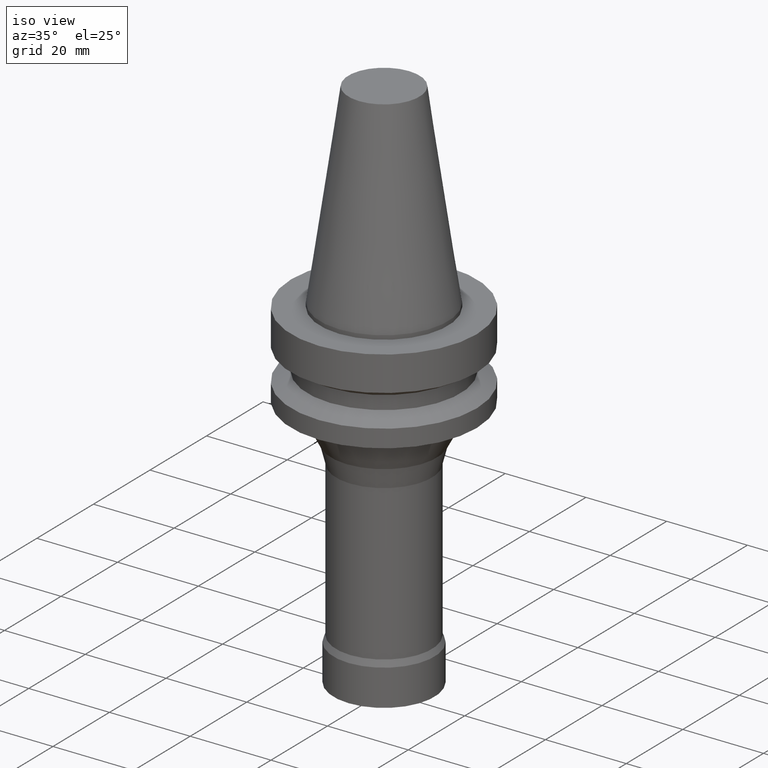
[diagram: clean part render]
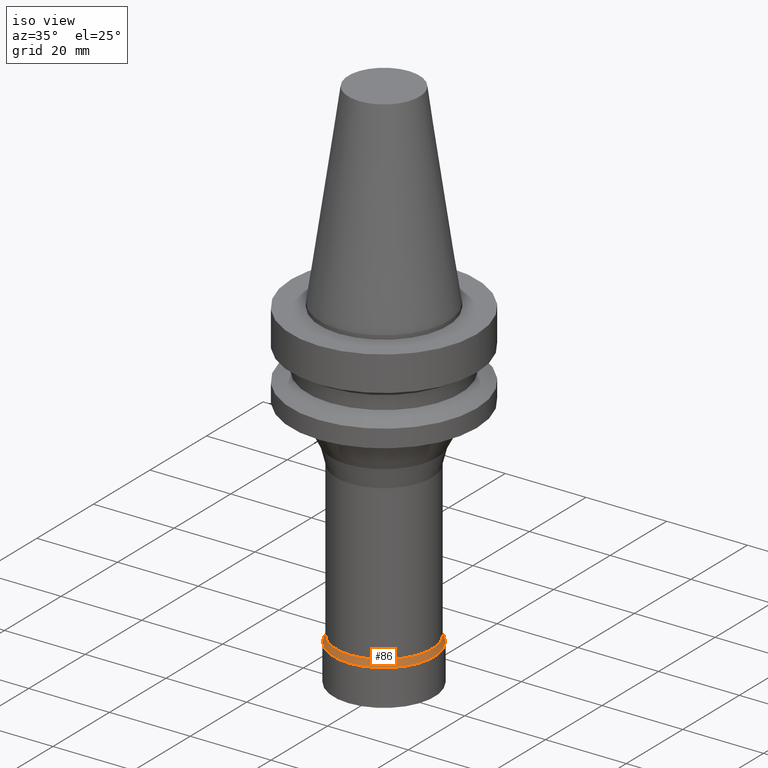
[diagram: same view with one face highlighted and labeled with its STEP entity id]
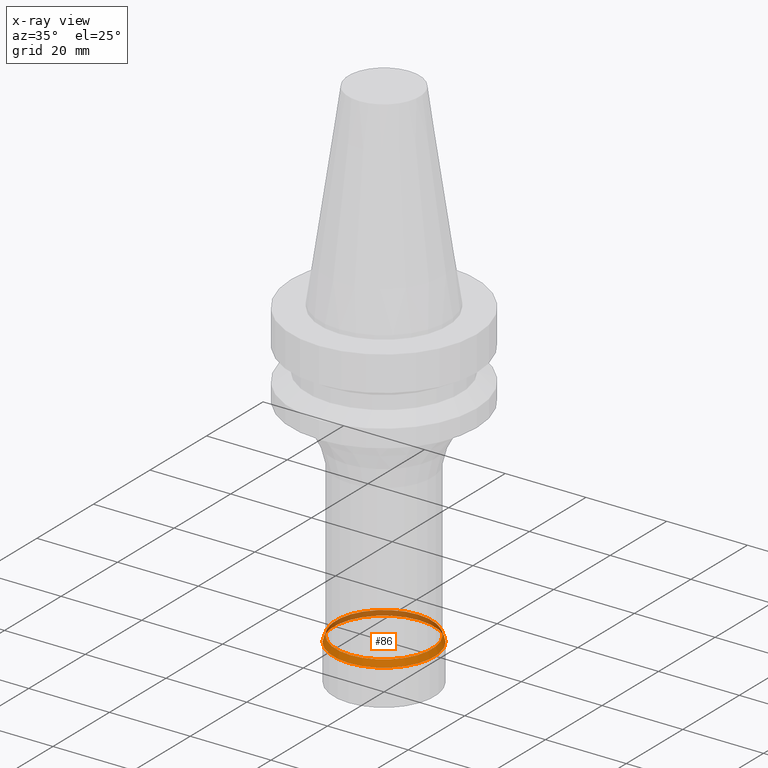
[diagram: x-ray of the same camera — body ghosted, the highlighted face saturated]
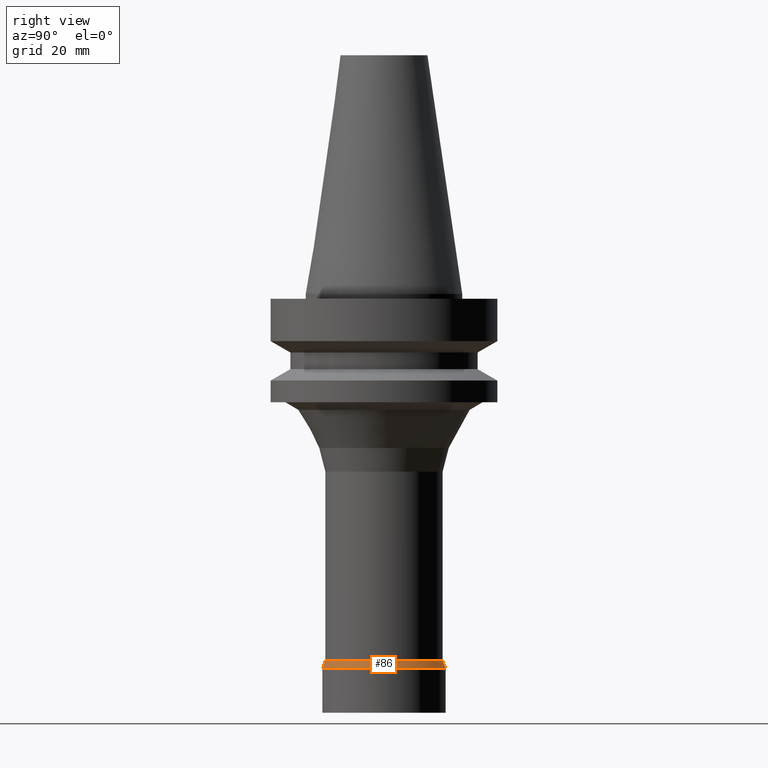
[diagram: same view with one face highlighted and labeled with its STEP entity id]
A machine part, iso view. The second image highlights one B-rep face of the part: STEP entity #86.
The next image is the same camera in x-ray: the body ghosted, the highlighted face saturated — about 32% of this face is hidden behind the body in this view.
A second angle (right view) of the same face is appended — the face is thin or edge-on in the first view.
In plain terms, the highlighted conical surface has half-angle 21.168 deg.
Its self-contained STEP definition (entity closure, byte-faithful):
#86=ADVANCED_FACE('',(#126,#127),#128,.T.);
#126=FACE_BOUND('',#175,.T.);
#127=FACE_BOUND('',#176,.T.);
#128=CONICAL_SURFACE('',#177,12.2,0.369443267706016);
#175=EDGE_LOOP('',(#246));
#176=EDGE_LOOP('',(#247));
#177=AXIS2_PLACEMENT_3D('',#248,#249,#250);
#246=ORIENTED_EDGE('',*,*,#286,.F.);
#247=ORIENTED_EDGE('',*,*,#285,.T.);
#248=CARTESIAN_POINT('',(4.60621821976306E-015,9.21243643952612E-015,-75.22525226));
#249=DIRECTION('',(6.12323399573677E-017,1.22464679914735E-016,-1.0));
#250=DIRECTION('',(-1.23259516440783E-032,1.0,1.22464679914735E-016));
#285=EDGE_CURVE('',#312,#312,#313,.T.);
#286=EDGE_CURVE('',#314,#314,#315,.T.);
#312=VERTEX_POINT('',#344);
#313=CIRCLE('',#345,11.9);
#314=VERTEX_POINT('',#346);
#315=CIRCLE('',#347,12.5);
#344=CARTESIAN_POINT('',(4.55877860276618E-015,11.9,-74.45050452));
#345=AXIS2_PLACEMENT_3D('',#387,#388,#389);
#346=CARTESIAN_POINT('',(4.65365783675994E-015,12.5,-76.0));
#347=AXIS2_PLACEMENT_3D('',#390,#391,#392);
#387=CARTESIAN_POINT('',(4.55877860276618E-015,9.11755720553235E-015,-74.45050452));
#388=DIRECTION('',(6.12323399573677E-017,1.22464679914735E-016,-1.0));
#389=DIRECTION('',(-1.23259516440783E-032,1.0,1.22464679914735E-016));
#390=CARTESIAN_POINT('',(4.65365783675994E-015,9.30731567351988E-015,-76.0));
#391=DIRECTION('',(6.12323399573677E-017,1.22464679914735E-016,-1.0));
#392=DIRECTION('',(-1.23259516440783E-032,1.0,1.22464679914735E-016));